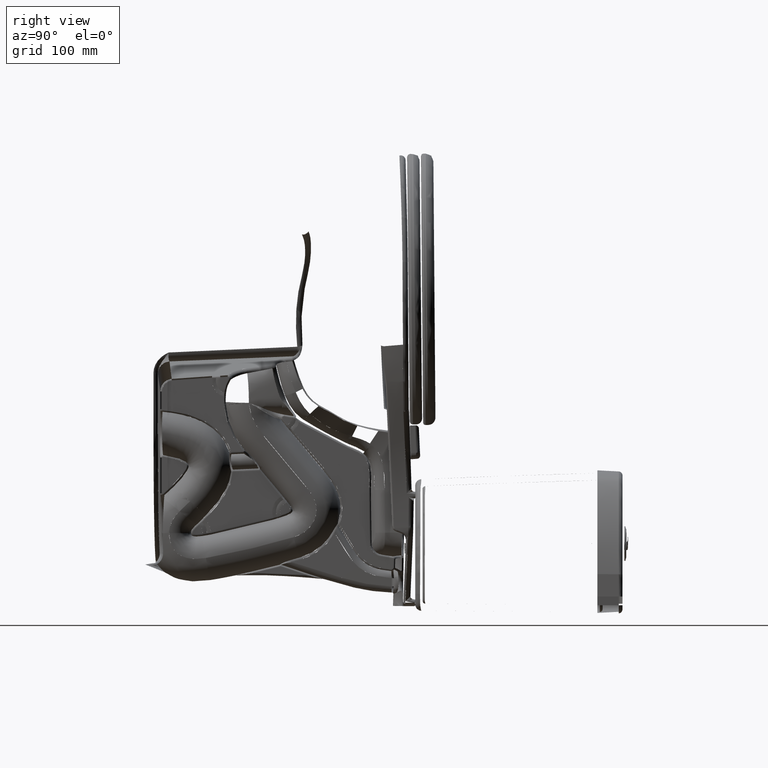
[diagram: clean part render]
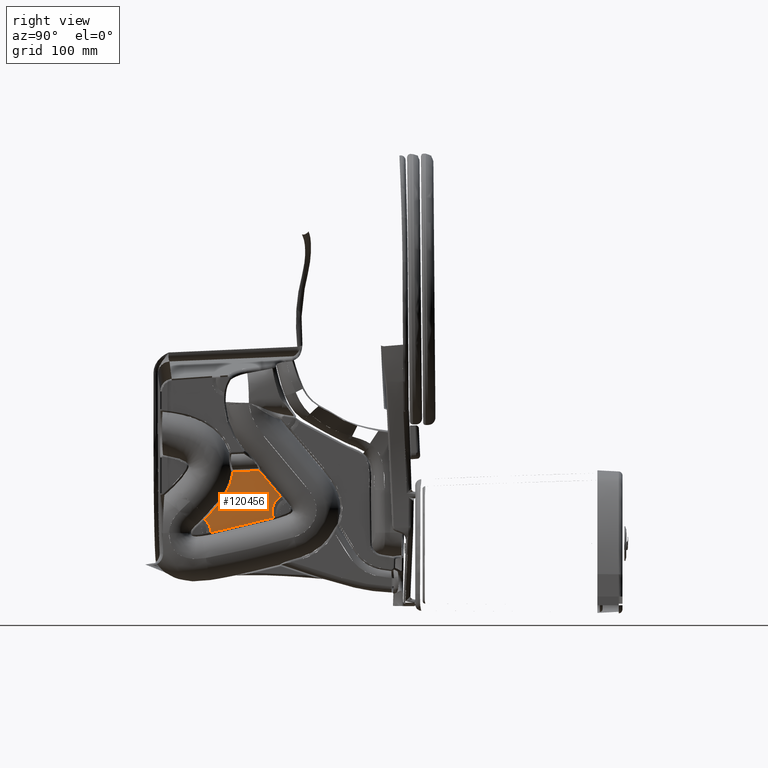
[diagram: same view with one face highlighted and labeled with its STEP entity id]
A machine part, right view. The second image highlights one B-rep face of the part: STEP entity #120456.
In plain terms, the highlighted planar face has unit normal (1, 0, 0).
Its self-contained STEP definition (entity closure, byte-faithful):
#2714 = CARTESIAN_POINT ( 'NONE',  ( 0.1574803149606299200, 9.618801867439984200, 5.662884761513147700 ) ) ;
#3350 = CARTESIAN_POINT ( 'NONE',  ( 0.1574803149606299700, 8.977975416244733600, 5.976171750971619000 ) ) ;
#3982 = CARTESIAN_POINT ( 'NONE',  ( 0.1574803149606299200, 9.721797717438185800, 5.598805864454811300 ) ) ;
#4609 = CARTESIAN_POINT ( 'NONE',  ( 0.1574803149606299700, 9.697476139315210000, 5.614226123486096400 ) ) ;
#5245 = CARTESIAN_POINT ( 'NONE',  ( 0.1574803149606298900, 10.38207847018606100, 5.110256741309140900 ) ) ;
#5871 = CARTESIAN_POINT ( 'NONE',  ( 0.1574803149606299200, 10.80777370222530800, 4.733361037433081900 ) ) ;
#7891 = CARTESIAN_POINT ( 'NONE',  ( 0.1574803149606299200, 8.609833831280479200, 8.265750986437952400 ) ) ;
#8250 = CARTESIAN_POINT ( 'NONE',  ( 0.1574803149606299700, 11.34899771055090900, 7.744388715104986600 ) ) ;
#8530 = CARTESIAN_POINT ( 'NONE',  ( 0.1574803149606299200, 8.921770103654708400, 8.527556335821142100 ) ) ;
#9431 = CARTESIAN_POINT ( 'NONE',  ( 0.1574803149606299200, 11.19010162286798300, 4.358033169794467200 ) ) ;
#9533 = CARTESIAN_POINT ( 'NONE',  ( 0.1574803149606298900, 11.52157611398741600, 7.046419941090373000 ) ) ;
#10793 = CARTESIAN_POINT ( 'NONE',  ( 0.1574803149606299200, 8.371696138409330200, 8.066384011109159100 ) ) ;
#10805 = CARTESIAN_POINT ( 'NONE',  ( 0.1574803149606299700, 11.94982906451516200, 5.175805931920676200 ) ) ;
#12371 = CARTESIAN_POINT ( 'NONE',  ( 0.1574803149606299200, 11.10124496252990800, 4.446365723758283700 ) ) ;
#12628 = CARTESIAN_POINT ( 'NONE',  ( 0.1574803149606298900, 11.93749337287744300, 4.753987680906195800 ) ) ;
#12947 = B_SPLINE_CURVE_WITH_KNOTS ( 'NONE', 3,
 ( #9431, #99385, #129134, #40500, #144046, #175009, #88976, #118084, #86452, #177545, #146592, #132971, #117446, #13903, #73473, #145313, #116813, #71574, #87086, #74108, #57941, #12628, #44307, #28818 ),
 .UNSPECIFIED., .F., .F.,
 ( 4, 2, 2, 1, 1, 1, 2, 2, 1, 1, 2, 2, 1, 1, 1, 4 ),
 ( 1.849533132428285100E-009, 0.2499999962097072000, 0.2656249958572125000, 0.2812499955047177400, 0.3124999947997283400, 0.3749999933897504300, 0.4999999905698005500, 0.5312499898648150900, 0.5624999891598295700, 0.6249999877498587700, 0.7499999849299233700, 0.7656249845774275600, 0.7812499842249316400, 0.8124999835199461200, 0.8749999821099747600, 0.9999999792900385900 ),
 .UNSPECIFIED. ) ;
#13098 = CARTESIAN_POINT ( 'NONE',  ( 0.1574803149606299200, 9.004674437666258400, 8.597198869459141700 ) ) ;
#13903 = CARTESIAN_POINT ( 'NONE',  ( 0.1574803149606298900, 11.63397099203485600, 4.680890444476082400 ) ) ;
#14011 = CARTESIAN_POINT ( 'NONE',  ( 0.1574803149606299200, 11.22220873743398800, 8.239321666305764700 ) ) ;
#14280 = CARTESIAN_POINT ( 'NONE',  ( 0.1574803149606298900, 11.14756609042397200, 4.400407937923775500 ) ) ;
#15230 = EDGE_CURVE ( 'NONE', #191767, #184569, #12947, .T. ) ;
#15827 = DIRECTION ( 'NONE',  ( 1.000000000000000000, 0.0000000000000000000, 0.0000000000000000000 ) ) ;
#17595 = CARTESIAN_POINT ( 'NONE',  ( 0.1574803149606299200, 9.717121587579978100, 5.601784439775617100 ) ) ;
#18231 = CARTESIAN_POINT ( 'NONE',  ( 0.1574803149606298900, 8.748570014484156900, 6.054862834193356100 ) ) ;
#18872 = CARTESIAN_POINT ( 'NONE',  ( 0.1574803149606299200, 8.864594416040569400, 6.016999546806927100 ) ) ;
#19506 = CARTESIAN_POINT ( 'NONE',  ( 0.1574803149606298900, 9.965656405076631000, 5.433914020687109500 ) ) ;
#20131 = CARTESIAN_POINT ( 'NONE',  ( 0.1574803149606298900, 10.05426626370172000, 5.369073307354056200 ) ) ;
#20958 = CARTESIAN_POINT ( 'NONE',  ( 0.1574803149606298600, 10.91126291204003400, 8.681894487096048600 ) ) ;
#21586 = CARTESIAN_POINT ( 'NONE',  ( 0.1574803149606299200, 9.837520293179661500, 9.083274013667860900 ) ) ;
#21739 = CARTESIAN_POINT ( 'NONE',  ( 0.1574803149606299200, 8.233903709263742600, 7.951371674443603200 ) ) ;
#22224 = CARTESIAN_POINT ( 'NONE',  ( 0.1574803149606298600, 10.40424083716842300, 8.703112750837400200 ) ) ;
#22783 = CARTESIAN_POINT ( 'NONE',  ( 0.1574803149606299200, 8.532622260008622600, 8.201074995314114000 ) ) ;
#23789 = CARTESIAN_POINT ( 'NONE',  ( 0.1574803149606299200, 11.94110700840949200, 5.216198511493311200 ) ) ;
#25066 = CARTESIAN_POINT ( 'NONE',  ( 0.1574803149606299200, 11.32968780075869700, 7.820767957428301100 ) ) ;
#27653 = CARTESIAN_POINT ( 'NONE',  ( 0.1574803149606299200, 11.22202219309354700, 8.240037442147043500 ) ) ;
#28012 = CARTESIAN_POINT ( 'NONE',  ( 0.1574803149606299200, 9.334511269568153600, 8.874022133453763700 ) ) ;
#28769 = CARTESIAN_POINT ( 'NONE',  ( 0.1574803149606299200, 8.169793882897245400, 6.171408814695669600 ) ) ;
#28818 = CARTESIAN_POINT ( 'NONE',  ( 0.1574803149606299200, 12.03814807987490300, 4.757477674332228900 ) ) ;
#29940 = CARTESIAN_POINT ( 'NONE',  ( 0.1574803149606299200, 8.563965686590473000, 6.102972744177598900 ) ) ;
#32493 = CARTESIAN_POINT ( 'NONE',  ( 0.1574803149606299200, 9.445506763820695500, 5.761600505123313500 ) ) ;
#32886 = EDGE_CURVE ( 'NONE', #82588, #177116, #166802, .T. ) ;
#33139 = CARTESIAN_POINT ( 'NONE',  ( 0.1574803149606298600, 9.356381128527020900, 5.808451723858673300 ) ) ;
#33770 = CARTESIAN_POINT ( 'NONE',  ( 0.1574803149606300000, 8.975852697556687700, 5.976971011205942700 ) ) ;
#34408 = CARTESIAN_POINT ( 'NONE',  ( 0.1574803149606298900, 10.06606613941716300, 5.360284536463974600 ) ) ;
#35035 = VERTEX_POINT ( 'NONE', #145753 ) ;
#35046 = CARTESIAN_POINT ( 'NONE',  ( 0.1574803149606298900, 10.39256873466066200, 5.101492539682951100 ) ) ;
#35871 = CARTESIAN_POINT ( 'NONE',  ( 0.1574803149606298900, 10.50658244961976500, 8.680176088458596300 ) ) ;
#37051 = CARTESIAN_POINT ( 'NONE',  ( 0.1574803149606299200, 8.931821101261411000, 8.536000051071619400 ) ) ;
#37136 = CARTESIAN_POINT ( 'NONE',  ( 0.1574803149606299200, 10.29741420491414200, 8.740113834316188600 ) ) ;
#37564 = CARTESIAN_POINT ( 'NONE',  ( 0.1574803149606298600, 10.90853703930609300, 4.637228284732045400 ) ) ;
#37679 = CARTESIAN_POINT ( 'NONE',  ( 0.1574803149606298900, 8.514429802319357400, 8.185845433219210300 ) ) ;
#37761 = CARTESIAN_POINT ( 'NONE',  ( 0.1574803149606299200, 10.31238807911365100, 8.734303400764709100 ) ) ;
#38408 = CARTESIAN_POINT ( 'NONE',  ( 0.1574803149606299700, 10.64354499692085000, 8.662071486690880600 ) ) ;
#40500 = CARTESIAN_POINT ( 'NONE',  ( 0.1574803149606298900, 11.36723408668083800, 4.528854997627855800 ) ) ;
#40608 = CARTESIAN_POINT ( 'NONE',  ( 0.1574803149606299200, 11.93255091648609000, 5.255724635609420000 ) ) ;
#42241 = CARTESIAN_POINT ( 'NONE',  ( 0.1574803149606300000, 9.333562615690175000, 8.873227456213076200 ) ) ;
#44307 = CARTESIAN_POINT ( 'NONE',  ( 0.1574803149606299200, 11.99772147435547100, 4.757377759016058900 ) ) ;
#44967 = CARTESIAN_POINT ( 'NONE',  ( 0.1574803149606299200, 11.01067222310236500, 4.536112926007874100 ) ) ;
#47361 = CARTESIAN_POINT ( 'NONE',  ( 0.1574803149606299200, 10.39350527795409100, 5.100708948541198500 ) ) ;
#48000 = CARTESIAN_POINT ( 'NONE',  ( 0.1574803149606299200, 8.576834539444588400, 6.099891855866438600 ) ) ;
#48643 = CARTESIAN_POINT ( 'NONE',  ( 0.1574803149606299200, 9.332664326411253000, 5.820464438454445500 ) ) ;
#49281 = CARTESIAN_POINT ( 'NONE',  ( 0.1574803149606299700, 10.04157062270375400, 5.378489046986779900 ) ) ;
#49927 = CARTESIAN_POINT ( 'NONE',  ( 0.1574803149606299200, 9.398868172903927800, 5.786538594197526000 ) ) ;
#50751 = CARTESIAN_POINT ( 'NONE',  ( 0.1574803149606298900, 10.27506335722916300, 8.749070749251741200 ) ) ;
#51189 = CARTESIAN_POINT ( 'NONE',  ( 0.1574803149606300000, 10.70509248668151200, 4.827526859772367700 ) ) ;
#51382 = CARTESIAN_POINT ( 'NONE',  ( 0.1574803149606299200, 10.91913524212058700, 8.683425464062144900 ) ) ;
#51944 = CARTESIAN_POINT ( 'NONE',  ( 0.1574803149606299200, 8.926420266175435700, 8.531462894951799200 ) ) ;
#52026 = CARTESIAN_POINT ( 'NONE',  ( 0.1574803149606299200, 9.817808015835048300, 9.109090555927547700 ) ) ;
#52565 = CARTESIAN_POINT ( 'NONE',  ( 0.1574803149606299700, 8.942543961296260900, 8.545008038531543400 ) ) ;
#53288 = CARTESIAN_POINT ( 'NONE',  ( 0.1574803149606299200, 10.57874292244503800, 8.667539092436142000 ) ) ;
#53564 = CARTESIAN_POINT ( 'NONE',  ( 0.1574803149606299700, 11.34845645846004600, 7.746533219489991000 ) ) ;
#56127 = CARTESIAN_POINT ( 'NONE',  ( 0.1574803149606298600, 11.21199374960366200, 8.278446958562183200 ) ) ;
#56486 = CARTESIAN_POINT ( 'NONE',  ( 0.1574803149606299200, 9.690100132492014900, 9.170809647483091400 ) ) ;
#57126 = CARTESIAN_POINT ( 'NONE',  ( 0.1574803149606298900, 9.295412709800226400, 8.841269399951649200 ) ) ;
#57941 = CARTESIAN_POINT ( 'NONE',  ( 0.1574803149606298900, 11.86794791638839500, 4.744362230790709000 ) ) ;
#58940 = CARTESIAN_POINT ( 'NONE',  ( 0.1574803149606299200, 11.12288131899561900, 4.424923936502142200 ) ) ;
#60930 = CARTESIAN_POINT ( 'NONE',  ( 0.1574803149606299200, 11.19010162286798300, 4.358033169794467200 ) ) ;
#62271 = CARTESIAN_POINT ( 'NONE',  ( 0.1574803149606299200, 9.426037207831232200, 5.772090174456892900 ) ) ;
#62898 = CARTESIAN_POINT ( 'NONE',  ( 0.1574803149606299700, 9.449406345095601600, 5.759487352546206500 ) ) ;
#63526 = CARTESIAN_POINT ( 'NONE',  ( 0.1574803149606299200, 9.249604273837102000, 5.861191316610034900 ) ) ;
#63848 = VERTEX_POINT ( 'NONE', #44967 ) ;
#64172 = CARTESIAN_POINT ( 'NONE',  ( 0.1574803149606299200, 9.573746496583595400, 5.689507727592756600 ) ) ;
#64818 = CARTESIAN_POINT ( 'NONE',  ( 0.1574803149606299700, 8.648275512812231700, 6.082541394293505400 ) ) ;
#65645 = CARTESIAN_POINT ( 'NONE',  ( 0.1574803149606299200, 9.989375692453563700, 8.925472445554783400 ) ) ;
#66086 = CARTESIAN_POINT ( 'NONE',  ( 0.1574803149606299200, 11.01067222310236500, 4.536112926007874100 ) ) ;
#66287 = CARTESIAN_POINT ( 'NONE',  ( 0.1574803149606299700, 9.847619030449571700, 9.070636689385821700 ) ) ;
#66562 = CARTESIAN_POINT ( 'NONE',  ( 0.1574803149606299200, 12.03814807987490300, 4.757477674332228900 ) ) ;
#66845 = CARTESIAN_POINT ( 'NONE',  ( 0.1574803149606298900, 8.923709997365305600, 8.529186026294430800 ) ) ;
#66930 = CARTESIAN_POINT ( 'NONE',  ( 0.1574803149606299200, 11.08959989952479800, 8.731862993989974300 ) ) ;
#67197 = CARTESIAN_POINT ( 'NONE',  ( 0.1574803149606299200, 11.89500394026753800, 5.428957807411356000 ) ) ;
#67461 = CARTESIAN_POINT ( 'NONE',  ( 0.1574803149606298900, 8.921318139743908300, 8.527176643550598500 ) ) ;
#67551 = CARTESIAN_POINT ( 'NONE',  ( 0.1574803149606299200, 10.12516858575291000, 8.826164608764335300 ) ) ;
#67709 = CARTESIAN_POINT ( 'NONE',  ( 0.1574803149606299200, 8.095087066712597600, 7.835815407122046500 ) ) ;
#67882 = CARTESIAN_POINT ( 'NONE',  ( 0.1574803149606299200, 11.08959989952479800, 8.731862993989974300 ) ) ;
#68177 = CARTESIAN_POINT ( 'NONE',  ( 0.1574803149606298900, 10.02006591353082100, 8.899726836652899200 ) ) ;
#68453 = CARTESIAN_POINT ( 'NONE',  ( 0.1574803149606298900, 11.99893401205127800, 4.946226633156421700 ) ) ;
#70015 = CARTESIAN_POINT ( 'NONE',  ( 0.1574803149606298900, 11.07078496607737800, 4.476511535484742200 ) ) ;
#70121 = CARTESIAN_POINT ( 'NONE',  ( 0.1574803149606299200, 12.03814807987490300, 4.757477674332228900 ) ) ;
#70675 = CARTESIAN_POINT ( 'NONE',  ( 0.1574803149606299200, 11.10347976173700600, 4.444153537204042200 ) ) ;
#71574 = CARTESIAN_POINT ( 'NONE',  ( 0.1574803149606298900, 11.80871930433394800, 4.733107904799629400 ) ) ;
#71676 = CARTESIAN_POINT ( 'NONE',  ( 0.1574803149606299200, 11.31049980268754900, 7.896392847800078700 ) ) ;
#72171 = ORIENTED_EDGE ( 'NONE', *, *, #32886, .T. ) ;
#73473 = CARTESIAN_POINT ( 'NONE',  ( 0.1574803149606299200, 11.70023946388447900, 4.705608489780874300 ) ) ;
#74108 = CARTESIAN_POINT ( 'NONE',  ( 0.1574803149606299200, 11.83335535361936200, 4.738131915986135900 ) ) ;
#74133 = DIRECTION ( 'NONE',  ( 0.0000000000000000000, 1.000000000000000000, 0.0000000000000000000 ) ) ;
#75168 = CARTESIAN_POINT ( 'NONE',  ( 0.1574803149606299200, 9.746979822967492900, 9.217913501955202100 ) ) ;
#76519 = CARTESIAN_POINT ( 'NONE',  ( 0.1574803149606298900, 10.39081944756720900, 5.102955515857261500 ) ) ;
#77167 = CARTESIAN_POINT ( 'NONE',  ( 0.1574803149606299200, 10.68536093092483900, 4.845566597187911400 ) ) ;
#77797 = CARTESIAN_POINT ( 'NONE',  ( 0.1574803149606298900, 9.352428737080501300, 5.810464356808888700 ) ) ;
#78416 = CARTESIAN_POINT ( 'NONE',  ( 0.1574803149606299200, 9.043518952197231900, 5.951424583187034000 ) ) ;
#79057 = CARTESIAN_POINT ( 'NONE',  ( 0.1574803149606299200, 10.29695005882977400, 5.180474836484428600 ) ) ;
#80508 = CARTESIAN_POINT ( 'NONE',  ( 0.1574803149606299200, 10.90738904797877300, 8.681162999228080300 ) ) ;
#81142 = CARTESIAN_POINT ( 'NONE',  ( 0.1574803149606299200, 9.952962597394913400, 8.957659302372130500 ) ) ;
#81694 = CARTESIAN_POINT ( 'NONE',  ( 0.1574803149606299700, 9.595743444237912800, 9.092379440089565900 ) ) ;
#81778 = CARTESIAN_POINT ( 'NONE',  ( 0.1574803149606299200, 10.48283305447880100, 8.684782866044473700 ) ) ;
#82050 = CARTESIAN_POINT ( 'NONE',  ( 0.1574803149606299200, 11.58724688410489300, 6.772658787584103600 ) ) ;
#82324 = CARTESIAN_POINT ( 'NONE',  ( 0.1574803149606299200, 8.509313587466707000, 8.181563189470210800 ) ) ;
#82588 = VERTEX_POINT ( 'NONE', #67882 ) ;
#83328 = CARTESIAN_POINT ( 'NONE',  ( 0.1574803149606299200, 11.85839085455235100, 5.595249717946703800 ) ) ;
#84607 = CARTESIAN_POINT ( 'NONE',  ( 0.1574803149606299700, 11.96681212114108900, 5.096845941157057200 ) ) ;
#84881 = CARTESIAN_POINT ( 'NONE',  ( 0.1574803149606299200, 11.10161549805110300, 4.445998978347306600 ) ) ;
#85253 = CARTESIAN_POINT ( 'NONE',  ( 0.1574803149606299700, 11.20168798703042300, 8.317771628910003700 ) ) ;
#85616 = CARTESIAN_POINT ( 'NONE',  ( 0.1574803149606299200, 9.746979822967492900, 9.217913501955202100 ) ) ;
#85901 = CARTESIAN_POINT ( 'NONE',  ( 0.1574803149606299200, 11.18136389097333000, 8.394871127705664900 ) ) ;
#86272 = CARTESIAN_POINT ( 'NONE',  ( 0.1574803149606299200, 9.368503189481890200, 8.902489626667721400 ) ) ;
#86452 = CARTESIAN_POINT ( 'NONE',  ( 0.1574803149606299200, 11.47965951722887800, 4.606577602235860000 ) ) ;
#87086 = CARTESIAN_POINT ( 'NONE',  ( 0.1574803149606299200, 11.81856857646310400, 4.735158011838426400 ) ) ;
#87191 = CARTESIAN_POINT ( 'NONE',  ( 0.1574803149606299700, 11.22108988574687200, 8.243614087113318300 ) ) ;
#87745 = CARTESIAN_POINT ( 'NONE',  ( 0.1574803149606299200, 1.938683561950000200, 0.7972875997031496600 ) ) ;
#88837 = CARTESIAN_POINT ( 'NONE',  ( 0.1574803149606299700, 8.551159513367760900, 6.106002812600921800 ) ) ;
#88976 = CARTESIAN_POINT ( 'NONE',  ( 0.1574803149606299200, 11.39165392233285900, 4.547249117754375900 ) ) ;
#90467 = EDGE_CURVE ( 'NONE', #177116, #35035, #122029, .T. ) ;
#91384 = CARTESIAN_POINT ( 'NONE',  ( 0.1574803149606299700, 9.483458271023437200, 5.740968474265219600 ) ) ;
#92017 = CARTESIAN_POINT ( 'NONE',  ( 0.1574803149606299200, 8.965576630468120800, 5.980822183034913300 ) ) ;
#92663 = CARTESIAN_POINT ( 'NONE',  ( 0.1574803149606299200, 9.719927309532428300, 5.599997822248282000 ) ) ;
#93311 = CARTESIAN_POINT ( 'NONE',  ( 0.1574803149606300000, 9.346499912481371900, 5.813477201417548200 ) ) ;
#93938 = CARTESIAN_POINT ( 'NONE',  ( 0.1574803149606299200, 10.36985810995303200, 5.120435904892091500 ) ) ;
#96470 = CARTESIAN_POINT ( 'NONE',  ( 0.1574803149606298900, 10.70760571584152700, 4.825223294631904000 ) ) ;
#96576 = CARTESIAN_POINT ( 'NONE',  ( 0.1574803149606299700, 9.402942960136785500, 8.931317398489515100 ) ) ;
#96934 = CARTESIAN_POINT ( 'NONE',  ( 0.1574803149606299200, 11.45072686304440900, 7.337681988801613800 ) ) ;
#97216 = CARTESIAN_POINT ( 'NONE',  ( 0.1574803149606299200, 9.342240919621090700, 8.880496779384794000 ) ) ;
#97588 = CARTESIAN_POINT ( 'NONE',  ( 0.1574803149606299700, 11.59102165139090200, 6.756813574447437400 ) ) ;
#98228 = CARTESIAN_POINT ( 'NONE',  ( 0.1574803149606298900, 11.33938709673061100, 7.782436546307149400 ) ) ;
#99385 = CARTESIAN_POINT ( 'NONE',  ( 0.1574803149606300000, 11.24171152363150500, 4.420176934140395800 ) ) ;
#101137 = CARTESIAN_POINT ( 'NONE',  ( 0.1574803149606299200, 9.335617435834063100, 8.874948743668985800 ) ) ;
#101421 = CARTESIAN_POINT ( 'NONE',  ( 0.1574803149606299200, 11.24223857946159700, 8.162457699601793200 ) ) ;
#101782 = CARTESIAN_POINT ( 'NONE',  ( 0.1574803149606299200, 9.081630582588717400, 8.661834393810782000 ) ) ;
#103068 = CARTESIAN_POINT ( 'NONE',  ( 0.1574803149606299200, 8.461439974669438900, 6.125923629763323500 ) ) ;
#104521 = B_SPLINE_CURVE_WITH_KNOTS ( 'NONE', 3,
 ( #146961, #174742, #70015, #173464, #12371, #84881, #144419, #70675, #119726, #132714, #58940, #14280, #177288, #134640 ),
 .UNSPECIFIED., .F., .F.,
 ( 4, 2, 2, 1, 1, 1, 1, 1, 1, 4 ),
 ( 0.0000000000000000000, 0.4999999674748932300, 0.5039062172207939800, 0.5078124669666949100, 0.5156249664584965400, 0.5312499654420996800, 0.5624999634093342800, 0.6249999593438035900, 0.7499999512127369900, 0.9999999349505991300 ),
 .UNSPECIFIED. ) ;
#106235 = CARTESIAN_POINT ( 'NONE',  ( 0.1574803149606299200, 10.52466297190722800, 4.989349479002354000 ) ) ;
#106887 = CARTESIAN_POINT ( 'NONE',  ( 0.1574803149606299700, 9.138733440662425900, 5.912303036641995700 ) ) ;
#107515 = CARTESIAN_POINT ( 'NONE',  ( 0.1574803149606299200, 9.779981440220094400, 5.561669865896363700 ) ) ;
#108157 = CARTESIAN_POINT ( 'NONE',  ( 0.1574803149606299200, 9.865129790535691600, 5.504962081364936900 ) ) ;
#108633 = CARTESIAN_POINT ( 'NONE',  ( 0.1574803149606299700, 12.02330553738862000, 4.829639809487200200 ) ) ;
#108796 = CARTESIAN_POINT ( 'NONE',  ( 0.1574803149606300000, 8.572502096954735900, 6.100935152142990400 ) ) ;
#110238 = CARTESIAN_POINT ( 'NONE',  ( 0.1574803149606299200, 9.912064171544425800, 8.996889655761801700 ) ) ;
#110878 = CARTESIAN_POINT ( 'NONE',  ( 0.1574803149606299200, 11.05908003410451100, 8.720492507195974200 ) ) ;
#111438 = CARTESIAN_POINT ( 'NONE',  ( 0.1574803149606299200, 8.557569807674390500, 8.221965615867532100 ) ) ;
#112071 = CARTESIAN_POINT ( 'NONE',  ( 0.1574803149606300000, 8.508888806040552300, 8.181207663895744300 ) ) ;
#113702 = CARTESIAN_POINT ( 'NONE',  ( 0.1574803149606299200, 11.58346129861580900, 6.788539979231903700 ) ) ;
#114343 = CARTESIAN_POINT ( 'NONE',  ( 0.1574803149606299200, 11.93334913943040300, 5.252041088098725800 ) ) ;
#114987 = CARTESIAN_POINT ( 'NONE',  ( 0.1574803149606298900, 11.21718255952644800, 8.258590893150776300 ) ) ;
#116006 = CARTESIAN_POINT ( 'NONE',  ( 0.1574803149606299200, 9.351036194514655600, 8.887863158804490700 ) ) ;
#116647 = CARTESIAN_POINT ( 'NONE',  ( 0.1574803149606299700, 8.963674440817515100, 8.562758714332540300 ) ) ;
#116813 = CARTESIAN_POINT ( 'NONE',  ( 0.1574803149606299200, 11.80387782318485200, 4.732066626373876000 ) ) ;
#117446 = CARTESIAN_POINT ( 'NONE',  ( 0.1574803149606298900, 11.60604084633235000, 4.669117115225630800 ) ) ;
#118084 = CARTESIAN_POINT ( 'NONE',  ( 0.1574803149606298600, 11.42052579172629100, 4.567886382075426100 ) ) ;
#118581 = CARTESIAN_POINT ( 'NONE',  ( 0.1574803149606299200, 8.521267538780575600, 6.112888734855216600 ) ) ;
#119726 = CARTESIAN_POINT ( 'NONE',  ( 0.1574803149606298900, 11.10612583461731100, 4.441533416992578900 ) ) ;
#120456 = ADVANCED_FACE ( 'NONE', ( #155949 ), #162725, .T. ) ;
#121149 = CARTESIAN_POINT ( 'NONE',  ( 0.1574803149606299200, 10.06515809366903200, 5.360962091040228500 ) ) ;
#121446 = ORIENTED_EDGE ( 'NONE', *, *, #90467, .T. ) ;
#121781 = CARTESIAN_POINT ( 'NONE',  ( 0.1574803149606299200, 8.922360154220230700, 5.996674994629649400 ) ) ;
#122029 = B_SPLINE_CURVE_WITH_KNOTS ( 'NONE', 3,
 ( #85616, #56486, #81694, #174830, #96576, #86272, #116006, #97216, #189698, #101137, #28012, #155451, #130888, #42241, #145783, #57126, #175477, #101782, #13098, #116647, #52565, #37051, #51944, #66845, #156086, #8530, #67461, #170282, #185136, #7891, #111438, #22783, #126336, #37679, #141235, #170923, #82324, #112071, #143498, #10793, #21739, #67709 ),
 .UNSPECIFIED., .F., .F.,
 ( 4, 1, 1, 1, 1, 1, 1, 1, 1, 1, 1, 2, 2, 1, 1, 1, 1, 1, 1, 1, 1, 2, 2, 1, 1, 1, 1, 1, 1, 1, 1, 2, 2, 4 ),
 ( 1.127436549869060600E-008, 0.1250000098623464400, 0.1875000091563368800, 0.2187500088033326700, 0.2343750086268296400, 0.2421875085385785900, 0.2460937584944526700, 0.2480468834723897900, 0.2490234459613582800, 0.2495117272058421100, 0.2497558678280845100, 0.2498779381392066100, 0.2500000084503287700, 0.3750000070418723100, 0.4375000063376430200, 0.4687500059855289100, 0.4843750058094717900, 0.4921875057214424900, 0.4960937556774274200, 0.4980468806554195200, 0.4990234431444159300, 0.4995117243889145000, 0.5000000056334130700, 0.6250000042248516900, 0.6875000035205703900, 0.7187500031684290700, 0.7343750029923579200, 0.7421875029043228900, 0.7460937528603055500, 0.7480468778382968200, 0.7490234403272919600, 0.7495117215717906900, 0.7500000028162895300, 1.000000000000000000 ),
 .UNSPECIFIED. ) ;
#122413 = CARTESIAN_POINT ( 'NONE',  ( 0.1574803149606299200, 9.451424319889451200, 5.758391733690214000 ) ) ;
#123069 = CARTESIAN_POINT ( 'NONE',  ( 0.1574803149606300000, 10.06379610783647400, 5.361978081876521300 ) ) ;
#123706 = CARTESIAN_POINT ( 'NONE',  ( 0.1574803149606299200, 10.38819604512892000, 5.105148658626502500 ) ) ;
#124526 = CARTESIAN_POINT ( 'NONE',  ( 0.1574803149606299700, 10.93093161896923400, 8.685787511978491100 ) ) ;
#125160 = CARTESIAN_POINT ( 'NONE',  ( 0.1574803149606299700, 9.789130814663289800, 9.148432790066859600 ) ) ;
#125797 = CARTESIAN_POINT ( 'NONE',  ( 0.1574803149606298900, 9.971021723507741200, 8.941455199955466800 ) ) ;
#126226 = CARTESIAN_POINT ( 'NONE',  ( 0.1574803149606300000, 10.70262538155636800, 4.829787107725272800 ) ) ;
#126336 = CARTESIAN_POINT ( 'NONE',  ( 0.1574803149606299200, 8.520444602210059100, 8.190880201220354100 ) ) ;
#126417 = CARTESIAN_POINT ( 'NONE',  ( 0.1574803149606299200, 10.49868449137469500, 8.681648746690232300 ) ) ;
#127323 = CARTESIAN_POINT ( 'NONE',  ( 0.1574803149606299200, 11.57462672423728400, 6.825552869218031800 ) ) ;
#127542 = VECTOR ( 'NONE', #134336, 39.37007874015748100 ) ;
#127960 = CARTESIAN_POINT ( 'NONE',  ( 0.1574803149606299200, 11.93287030857800500, 5.254250809201486100 ) ) ;
#128600 = CARTESIAN_POINT ( 'NONE',  ( 0.1574803149606299200, 11.38982980133998300, 7.582592897767664700 ) ) ;
#129134 = CARTESIAN_POINT ( 'NONE',  ( 0.1574803149606299200, 11.29942610491806200, 4.476082798610056200 ) ) ;
#130888 = CARTESIAN_POINT ( 'NONE',  ( 0.1574803149606299200, 9.333720754355779200, 8.873359927957892500 ) ) ;
#131169 = CARTESIAN_POINT ( 'NONE',  ( 0.1574803149606299200, 11.08959989952479800, 8.731862993989974300 ) ) ;
#132714 = CARTESIAN_POINT ( 'NONE',  ( 0.1574803149606298900, 11.11154355853456400, 4.436166210966563400 ) ) ;
#132971 = CARTESIAN_POINT ( 'NONE',  ( 0.1574803149606299200, 11.58752533318564000, 4.661006033222509600 ) ) ;
#134336 = DIRECTION ( 'NONE',  ( 0.0000000000000000000, 0.04483980996803622900, -0.9989941898940306600 ) ) ;
#134352 = EDGE_CURVE ( 'NONE', #35035, #173972, #152999, .T. ) ;
#134640 = CARTESIAN_POINT ( 'NONE',  ( 0.1574803149606299200, 11.19010162286798300, 4.358033169794467200 ) ) ;
#136025 = CARTESIAN_POINT ( 'NONE',  ( 0.1574803149606299200, 10.06061872042142500, 5.364346339964557200 ) ) ;
#136662 = CARTESIAN_POINT ( 'NONE',  ( 0.1574803149606299200, 9.375712120791755300, 5.798569487153272900 ) ) ;
#137307 = CARTESIAN_POINT ( 'NONE',  ( 0.1574803149606299200, 9.358410927763243200, 5.807415923459116900 ) ) ;
#137940 = CARTESIAN_POINT ( 'NONE',  ( 0.1574803149606299200, 10.06655930672791200, 5.359916441732294400 ) ) ;
#138572 = CARTESIAN_POINT ( 'NONE',  ( 0.1574803149606298600, 8.971742710833039400, 5.978513967274107400 ) ) ;
#140040 = CARTESIAN_POINT ( 'NONE',  ( 0.1574803149606299200, 10.31984650624043800, 8.731502260280082700 ) ) ;
#140605 = EDGE_CURVE ( 'NONE', #63848, #191767, #104521, .T. ) ;
#140674 = CARTESIAN_POINT ( 'NONE',  ( 0.1574803149606299200, 9.879133295237320300, 9.032951297668597900 ) ) ;
#141235 = CARTESIAN_POINT ( 'NONE',  ( 0.1574803149606299700, 8.511440909626152500, 8.183343706480076900 ) ) ;
#141955 = CARTESIAN_POINT ( 'NONE',  ( 0.1574803149606299700, 10.95837167037748300, 8.691758034387035500 ) ) ;
#142859 = CARTESIAN_POINT ( 'NONE',  ( 0.1574803149606299200, 11.75039432086689600, 6.077726200124728500 ) ) ;
#143498 = CARTESIAN_POINT ( 'NONE',  ( 0.1574803149606299700, 8.508731479570734300, 8.181075988224206300 ) ) ;
#143689 = ORIENTED_EDGE ( 'NONE', *, *, #144045, .T. ) ;
#144045 = EDGE_CURVE ( 'NONE', #173972, #63848, #147663, .T. ) ;
#144046 = CARTESIAN_POINT ( 'NONE',  ( 0.1574803149606299200, 11.37131246531572900, 4.531985402237095800 ) ) ;
#144146 = CARTESIAN_POINT ( 'NONE',  ( 0.1574803149606298900, 11.93237668638168200, 5.256528549435119900 ) ) ;
#144419 = CARTESIAN_POINT ( 'NONE',  ( 0.1574803149606298900, 11.10217242256643500, 4.445447726609383000 ) ) ;
#145109 = B_SPLINE_CURVE_WITH_KNOTS ( 'NONE', 3,
 ( #66562, #108633, #68453, #84607, #10805, #23789, #155815, #171918, #114343, #127960, #40608, #144146, #67197, #83328, #142859, #186123, #97588, #170643, #82050, #113702, #127323, #185496, #9533, #96934, #128600, #8250, #156440, #53564, #157708, #186762, #187409, #98228, #25066, #71676, #189982, #101421, #161543, #14011, #27653, #146696, #87191, #191244, #114987, #56127, #85253, #85901, #158957, #173823, #131169 ),
 .UNSPECIFIED., .F., .F.,
 ( 4, 1, 1, 1, 1, 1, 1, 1, 2, 2, 2, 2, 2, 1, 1, 1, 1, 1, 2, 2, 1, 1, 1, 1, 1, 1, 1, 2, 2, 1, 1, 1, 1, 1, 1, 1, 1, 4 ),
 ( 1.130996825474546600E-009, 0.06250000071988995300, 0.09375000051433650400, 0.1093750004115594300, 0.1171875003601708900, 0.1210937503344769700, 0.1230468753216300100, 0.1240234378152065300, 0.1245117190619947900, 0.1250000003087830500, 0.2499999994866540200, 0.4999999978423956300, 0.5039062478167039000, 0.5078124977910122300, 0.5156249977396290000, 0.5312499976368615400, 0.5624999974313276100, 0.6249999970202594300, 0.7499999961981225200, 0.7504882774449102000, 0.7509765586916978800, 0.7519531211852729100, 0.7539062461724231900, 0.7578124961467247500, 0.7656249960953274100, 0.7812499959925334200, 0.8124999957869456500, 0.8749999953757702200, 0.8752441359991648400, 0.8754882766225593500, 0.8759765578693488000, 0.8769531203629270500, 0.8789062453500824400, 0.8828124953243923200, 0.8906249952730126400, 0.9062499951702539500, 0.9374999949647372400, 0.9999999945537042500 ),
 .UNSPECIFIED. ) ;
#145313 = CARTESIAN_POINT ( 'NONE',  ( 0.1574803149606299200, 11.75892352297346300, 4.722075860705661700 ) ) ;
#145753 = CARTESIAN_POINT ( 'NONE',  ( 0.1574803149606299200, 8.095087066712597600, 7.835815407122046500 ) ) ;
#145783 = CARTESIAN_POINT ( 'NONE',  ( 0.1574803149606299700, 9.333441569838147000, 8.873126056612578700 ) ) ;
#146592 = CARTESIAN_POINT ( 'NONE',  ( 0.1574803149606298900, 11.57827626956868800, 4.656798827753521100 ) ) ;
#146696 = CARTESIAN_POINT ( 'NONE',  ( 0.1574803149606298900, 11.22174241668180100, 8.241110889692167900 ) ) ;
#146961 = CARTESIAN_POINT ( 'NONE',  ( 0.1574803149606299200, 11.01067222310236500, 4.536112926007874100 ) ) ;
#147663 = B_SPLINE_CURVE_WITH_KNOTS ( 'NONE', 3,
 ( #176778, #177405, #191630, #103068, #118581, #88837, #29940, #108796, #48000, #64818, #18231, #18872, #121781, #166368, #92017, #138572, #33770, #3350, #78416, #106887, #63526, #151528, #48643, #93311, #77797, #33139, #137307, #136662, #49927, #62271, #180593, #32493, #62898, #122413, #91384, #181231, #64172, #2714, #152165, #4609, #166999, #17595, #92663, #3982, #181864, #107515, #108157, #19506, #153447, #49281, #20131, #136025, #123069, #121149, #34408, #137940, #152796, #167630, #79057, #182496, #93938, #5245, #123706, #76519, #35046, #47361, #179951, #106235, #150900, #165733, #77167, #168911, #126226, #51189, #154701, #96470, #5871, #37564, #66086 ),
 .UNSPECIFIED., .F., .F.,
 ( 4, 1, 1, 1, 1, 2, 2, 1, 1, 1, 1, 1, 2, 2, 1, 1, 1, 1, 1, 2, 2, 1, 1, 1, 2, 2, 2, 1, 1, 1, 1, 1, 2, 2, 1, 1, 1, 1, 1, 1, 1, 2, 2, 1, 1, 1, 1, 1, 1, 2, 2, 1, 1, 1, 1, 1, 1, 2, 2, 4 ),
 ( 0.0000000000000000000, 0.06249999999997359100, 0.09374999999995992100, 0.1093749999999525000, 0.1171874999999482100, 0.1210937499999465300, 0.1249999999999448500, 0.1874999999999190600, 0.2187499999999064900, 0.2343749999999001900, 0.2421874999998975000, 0.2460937499998961400, 0.2480468749998956700, 0.2499999999998951400, 0.3124999999998735500, 0.3437499999998632200, 0.3593749999998582800, 0.3671874999998556200, 0.3710937499998546700, 0.3730468749998546200, 0.3749999999998545600, 0.3906249999998512300, 0.3984374999998492900, 0.4023437499998479000, 0.4042968749998476200, 0.4062499999998474000, 0.4374999999998397900, 0.4687499999998321300, 0.4843749999998279200, 0.4921874999998260300, 0.4960937499998244700, 0.4980468749998234200, 0.4990234374998231400, 0.4999999999998229200, 0.5624999999997611900, 0.5937499999997295500, 0.6093749999997137800, 0.6171874999997065700, 0.6210937499997032400, 0.6230468749997021300, 0.6240234374997010200, 0.6245117187497004600, 0.6249999999996999100, 0.6874999999997816200, 0.7187499999998217000, 0.7343749999998425700, 0.7421874999998540100, 0.7460937499998596700, 0.7480468749998633300, 0.7490234374998655500, 0.7499999999998677700, 0.8124999999999238400, 0.8437499999999525900, 0.8593749999999666900, 0.8671874999999738000, 0.8710937499999772400, 0.8730468749999781300, 0.8740234374999787900, 0.8749999999999795700, 1.000000000000000000 ),
 .UNSPECIFIED. ) ;
#149004 = ORIENTED_EDGE ( 'NONE', *, *, #165335, .T. ) ;
#150900 = CARTESIAN_POINT ( 'NONE',  ( 0.1574803149606299700, 10.61639373258975600, 4.907960334334969600 ) ) ;
#151528 = CARTESIAN_POINT ( 'NONE',  ( 0.1574803149606299200, 9.304986506249088400, 5.834267977661702400 ) ) ;
#152165 = CARTESIAN_POINT ( 'NONE',  ( 0.1574803149606299700, 9.671267822701892700, 5.630642664484421200 ) ) ;
#152796 = CARTESIAN_POINT ( 'NONE',  ( 0.1574803149606298900, 10.12008930501793100, 5.319952129158133800 ) ) ;
#152999 = LINE ( 'NONE', #160902, #127542 ) ;
#153447 = CARTESIAN_POINT ( 'NONE',  ( 0.1574803149606299200, 10.01621643047362300, 5.397167745667077000 ) ) ;
#153945 = ORIENTED_EDGE ( 'NONE', *, *, #15230, .T. ) ;
#154271 = CARTESIAN_POINT ( 'NONE',  ( 0.1574803149606298900, 10.18095877428453700, 8.793915662514072200 ) ) ;
#154701 = CARTESIAN_POINT ( 'NONE',  ( 0.1574803149606299200, 10.70673729533969300, 4.826019453025429200 ) ) ;
#154898 = CARTESIAN_POINT ( 'NONE',  ( 0.1574803149606299700, 10.45912025079648300, 8.689741395529546600 ) ) ;
#155451 = CARTESIAN_POINT ( 'NONE',  ( 0.1574803149606298900, 9.333957945117191500, 8.873558620746587500 ) ) ;
#155533 = CARTESIAN_POINT ( 'NONE',  ( 0.1574803149606299200, 10.09798781169212700, 8.843477264701695300 ) ) ;
#155815 = CARTESIAN_POINT ( 'NONE',  ( 0.1574803149606299200, 11.93668834840848600, 5.236622947327337100 ) ) ;
#155949 = FACE_OUTER_BOUND ( 'NONE', #173746, .T. ) ;
#156086 = CARTESIAN_POINT ( 'NONE',  ( 0.1574803149606299200, 8.922546342603725500, 8.528208448884672800 ) ) ;
#156170 = CARTESIAN_POINT ( 'NONE',  ( 0.1574803149606299200, 10.35797355971124700, 8.717662117974443300 ) ) ;
#156440 = CARTESIAN_POINT ( 'NONE',  ( 0.1574803149606299700, 11.34880646580061200, 7.745146478294427300 ) ) ;
#156797 = CARTESIAN_POINT ( 'NONE',  ( 0.1574803149606298900, 10.22368112459749100, 8.771659069693013700 ) ) ;
#157708 = CARTESIAN_POINT ( 'NONE',  ( 0.1574803149606298900, 11.34793156496808900, 7.748612752080283900 ) ) ;
#158957 = CARTESIAN_POINT ( 'NONE',  ( 0.1574803149606299200, 11.14186541521665900, 8.542870757697089700 ) ) ;
#160902 = CARTESIAN_POINT ( 'NONE',  ( 0.1574803149606299200, 8.095087066712597600, 7.835815407122046500 ) ) ;
#161543 = CARTESIAN_POINT ( 'NONE',  ( 0.1574803149606299700, 11.22231780824791300, 8.238903130729299900 ) ) ;
#162725 = PLANE ( 'NONE',  #169467 ) ;
#165335 = EDGE_CURVE ( 'NONE', #184569, #82588, #145109, .T. ) ;
#165733 = CARTESIAN_POINT ( 'NONE',  ( 0.1574803149606298900, 10.66235575740141800, 4.866493259917549900 ) ) ;
#166368 = CARTESIAN_POINT ( 'NONE',  ( 0.1574803149606299200, 8.951181407660429900, 5.986164491419994100 ) ) ;
#166802 = B_SPLINE_CURVE_WITH_KNOTS ( 'NONE', 3,
 ( #66930, #110878, #186487, #141955, #124526, #51382, #20958, #80508, #169734, #183949, #38408, #53288, #35871, #126417, #81778, #154898, #22224, #156170, #140040, #37761, #37136, #50751, #156797, #154271, #67551, #155533, #171011, #68177, #65645, #169097, #125797, #81142, #110238, #140674, #66287, #21586, #52026, #125160, #185211, #184582 ),
 .UNSPECIFIED., .F., .F.,
 ( 4, 1, 1, 1, 2, 2, 2, 2, 2, 1, 1, 2, 2, 1, 1, 2, 2, 2, 2, 1, 1, 2, 2, 1, 4 ),
 ( 1.054280766817359200E-009, 0.06250000085092020900, 0.09375000074924171000, 0.1093750006984003700, 0.1171875006729797000, 0.1250000006475590300, 0.2500000002408235300, 0.3749999998340880500, 0.3906249997832455500, 0.4062499997324030000, 0.4374999996307179000, 0.4999999994273436300, 0.5156249993765029700, 0.5312499993256620800, 0.5624999992239766400, 0.6249999990206047700, 0.6874999988172328900, 0.7499999986138609100, 0.7656249985630205800, 0.7812499985121802400, 0.8124999984105012500, 0.8749999982071448000, 0.9062499981054693600, 0.9374999980037938000, 0.9999999978004428000 ),
 .UNSPECIFIED. ) ;
#166999 = CARTESIAN_POINT ( 'NONE',  ( 0.1574803149606298900, 9.710574132367456800, 5.605943979865941200 ) ) ;
#167630 = CARTESIAN_POINT ( 'NONE',  ( 0.1574803149606298900, 10.20084361806527300, 5.257763945526614100 ) ) ;
#168911 = CARTESIAN_POINT ( 'NONE',  ( 0.1574803149606299200, 10.69686955796595600, 4.835054984442858300 ) ) ;
#169097 = CARTESIAN_POINT ( 'NONE',  ( 0.1574803149606298900, 9.983179191876232000, 8.930787777495226000 ) ) ;
#169467 = AXIS2_PLACEMENT_3D ( 'NONE', #87745, #15827, #74133 ) ;
#169734 = CARTESIAN_POINT ( 'NONE',  ( 0.1574803149606299200, 10.83920911474344000, 8.668686586450949200 ) ) ;
#170282 = CARTESIAN_POINT ( 'NONE',  ( 0.1574803149606300000, 8.837799180025337300, 8.457012783750769800 ) ) ;
#170643 = CARTESIAN_POINT ( 'NONE',  ( 0.1574803149606299700, 11.58977046094803000, 6.762067209927598900 ) ) ;
#170923 = CARTESIAN_POINT ( 'NONE',  ( 0.1574803149606299200, 8.509951090092588500, 8.182096757425863800 ) ) ;
#171011 = CARTESIAN_POINT ( 'NONE',  ( 0.1574803149606299200, 10.04547116390780200, 8.880238327414057100 ) ) ;
#171918 = CARTESIAN_POINT ( 'NONE',  ( 0.1574803149606299200, 11.93446461042093000, 5.246892201756272000 ) ) ;
#173464 = CARTESIAN_POINT ( 'NONE',  ( 0.1574803149606299200, 11.10111062964255200, 4.446498678995531000 ) ) ;
#173746 = EDGE_LOOP ( 'NONE', ( #149004, #72171, #121446, #176216, #143689, #174382, #153945 ) ) ;
#173823 = CARTESIAN_POINT ( 'NONE',  ( 0.1574803149606299200, 11.10998052118096900, 8.659100096089918700 ) ) ;
#173972 = VERTEX_POINT ( 'NONE', #28769 ) ;
#174382 = ORIENTED_EDGE ( 'NONE', *, *, #140605, .T. ) ;
#174742 = CARTESIAN_POINT ( 'NONE',  ( 0.1574803149606298900, 11.04071719145174900, 4.506305398554776100 ) ) ;
#174830 = CARTESIAN_POINT ( 'NONE',  ( 0.1574803149606299200, 9.469845624328247200, 8.987272286514423700 ) ) ;
#175009 = CARTESIAN_POINT ( 'NONE',  ( 0.1574803149606298900, 11.37942919116949800, 4.538127792850889200 ) ) ;
#175477 = CARTESIAN_POINT ( 'NONE',  ( 0.1574803149606299200, 9.215367477333499500, 8.774126298907802400 ) ) ;
#176216 = ORIENTED_EDGE ( 'NONE', *, *, #134352, .T. ) ;
#176778 = CARTESIAN_POINT ( 'NONE',  ( 0.1574803149606299200, 8.169793882897245400, 6.171408814695669600 ) ) ;
#177116 = VERTEX_POINT ( 'NONE', #75168 ) ;
#177288 = CARTESIAN_POINT ( 'NONE',  ( 0.1574803149606299200, 11.17216889537324300, 4.375911739743118600 ) ) ;
#177405 = CARTESIAN_POINT ( 'NONE',  ( 0.1574803149606299200, 8.238600237445618600, 6.163811102272186200 ) ) ;
#177545 = CARTESIAN_POINT ( 'NONE',  ( 0.1574803149606299700, 11.53272840202945000, 4.635312976404802200 ) ) ;
#179951 = CARTESIAN_POINT ( 'NONE',  ( 0.1574803149606299200, 10.44636795807784500, 5.056463024430199100 ) ) ;
#180593 = CARTESIAN_POINT ( 'NONE',  ( 0.1574803149606299200, 9.439660135493989300, 5.764762870096846300 ) ) ;
#181231 = CARTESIAN_POINT ( 'NONE',  ( 0.1574803149606299200, 9.513597511388001100, 5.724104467176347000 ) ) ;
#181864 = CARTESIAN_POINT ( 'NONE',  ( 0.1574803149606300000, 9.722788117984949400, 5.598174192523496900 ) ) ;
#182496 = CARTESIAN_POINT ( 'NONE',  ( 0.1574803149606299200, 10.34547654809766600, 5.140646224928651100 ) ) ;
#183949 = CARTESIAN_POINT ( 'NONE',  ( 0.1574803149606299200, 10.77446800980139800, 8.662666834416439700 ) ) ;
#184569 = VERTEX_POINT ( 'NONE', #70121 ) ;
#184582 = CARTESIAN_POINT ( 'NONE',  ( 0.1574803149606299200, 9.746979822967492900, 9.217913501955202100 ) ) ;
#185136 = CARTESIAN_POINT ( 'NONE',  ( 0.1574803149606298900, 8.723837591590879000, 8.361338245433144000 ) ) ;
#185211 = CARTESIAN_POINT ( 'NONE',  ( 0.1574803149606299200, 9.763127258027038700, 9.189627286455536400 ) ) ;
#185496 = CARTESIAN_POINT ( 'NONE',  ( 0.1574803149606298900, 11.55695140919755700, 6.899405753755377000 ) ) ;
#186123 = CARTESIAN_POINT ( 'NONE',  ( 0.1574803149606299200, 11.67371245395656500, 6.409445963820299900 ) ) ;
#186487 = CARTESIAN_POINT ( 'NONE',  ( 0.1574803149606299200, 11.01291246157297000, 8.705535388285738900 ) ) ;
#186762 = CARTESIAN_POINT ( 'NONE',  ( 0.1574803149606298900, 11.34670763611918300, 7.753460940369600400 ) ) ;
#187409 = CARTESIAN_POINT ( 'NONE',  ( 0.1574803149606298900, 11.34426306895064900, 7.763141099262751900 ) ) ;
#189698 = CARTESIAN_POINT ( 'NONE',  ( 0.1574803149606299200, 9.337827837821821600, 8.876800303302925200 ) ) ;
#189982 = CARTESIAN_POINT ( 'NONE',  ( 0.1574803149606299200, 11.27296618203599000, 8.043490901061456800 ) ) ;
#191244 = CARTESIAN_POINT ( 'NONE',  ( 0.1574803149606299200, 11.21978594664689100, 8.248614427885700100 ) ) ;
#191630 = CARTESIAN_POINT ( 'NONE',  ( 0.1574803149606298600, 8.341610386700072200, 6.149045621177584100 ) ) ;
#191767 = VERTEX_POINT ( 'NONE', #60930 ) ;